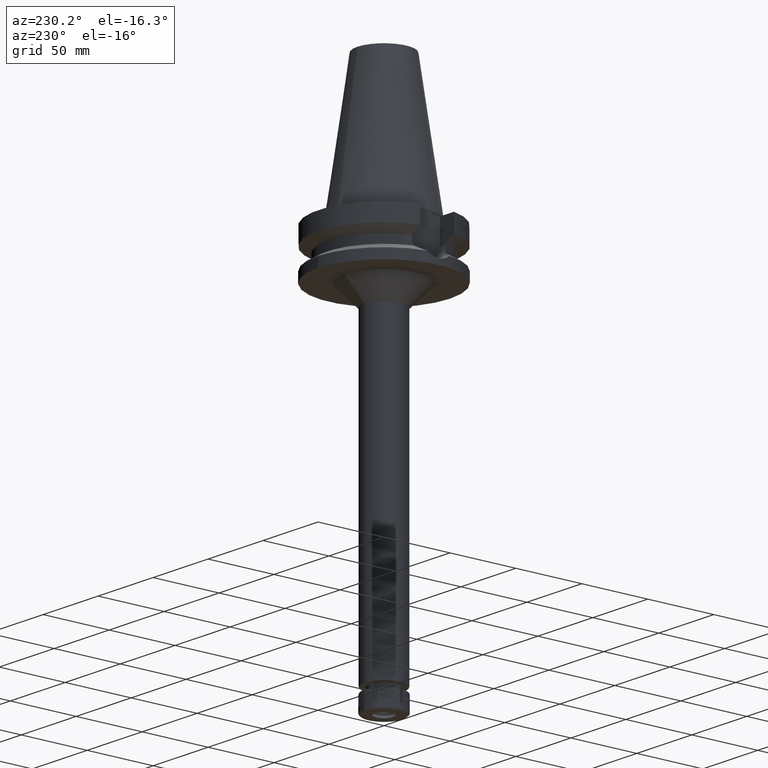
[diagram: clean part render]
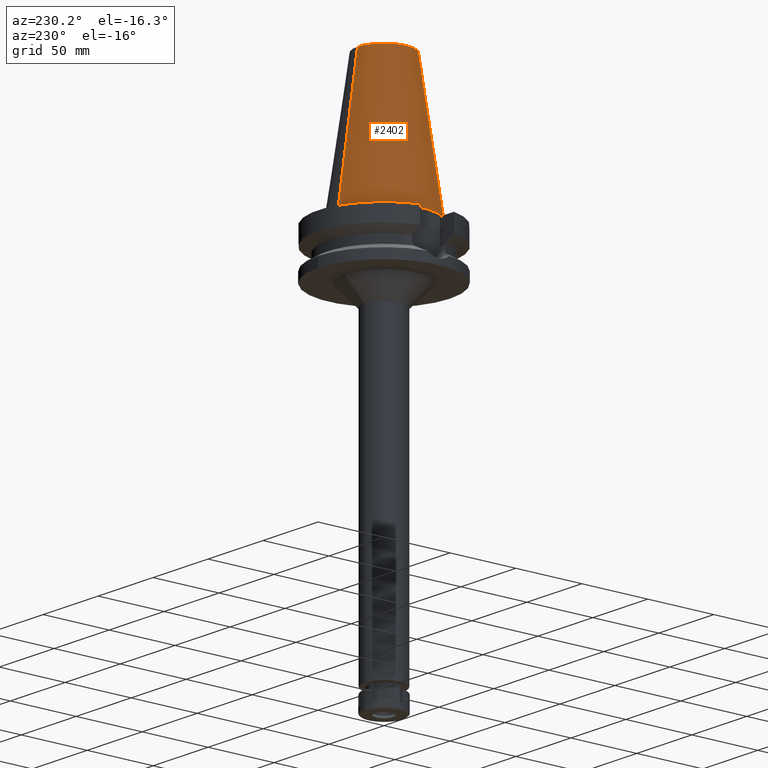
[diagram: same view with one face highlighted and labeled with its STEP entity id]
A machine part, auxiliary view. The second image highlights one B-rep face of the part: STEP entity #2402.
In plain terms, the highlighted conical surface has half-angle 8.297 deg.
Its self-contained STEP definition (entity closure, byte-faithful):
#28 = ORIENTED_EDGE ( 'NONE', *, *, #2291, .T. ) ;
#266 = CARTESIAN_POINT ( 'NONE',  ( 0.0000000000000000000, 20.07942971896000017, 101.7999999999999972 ) ) ;
#404 = VECTOR ( 'NONE', #3589, 1000.000000000000114 ) ;
#431 = CARTESIAN_POINT ( 'NONE',  ( 0.0000000000000000000, -34.92499999999999716, 8.526512829120999272E-13 ) ) ;
#478 = EDGE_CURVE ( 'NONE', #2591, #634, #2518, .T. ) ;
#517 = CARTESIAN_POINT ( 'NONE',  ( 0.0000000000000000000, 1.847992019912999597E-14, 50.89999999999999858 ) ) ;
#618 = EDGE_LOOP ( 'NONE', ( #3569, #734, #3232, #28 ) ) ;
#634 = VERTEX_POINT ( 'NONE', #3200 ) ;
#689 = VERTEX_POINT ( 'NONE', #1523 ) ;
#734 = ORIENTED_EDGE ( 'NONE', *, *, #3329, .F. ) ;
#786 = FACE_OUTER_BOUND ( 'NONE', #618, .T. ) ;
#969 = DIRECTION ( 'NONE',  ( 0.0000000000000000000, 0.0000000000000000000, -1.000000000000000000 ) ) ;
#1020 = DIRECTION ( 'NONE',  ( 0.0000000000000000000, 0.0000000000000000000, -1.000000000000000000 ) ) ;
#1077 = LINE ( 'NONE', #266, #404 ) ;
#1228 = AXIS2_PLACEMENT_3D ( 'NONE', #2950, #2125, #1281 ) ;
#1281 = DIRECTION ( 'NONE',  ( 0.0000000000000000000, -1.000000000000000000, 0.0000000000000000000 ) ) ;
#1382 = CONICAL_SURFACE ( 'NONE', #2431, 27.50221485948000222, 0.1448099680379422438 ) ;
#1523 = CARTESIAN_POINT ( 'NONE',  ( 0.0000000000000000000, 34.92499999999999716, 7.105427357600999839E-13 ) ) ;
#1632 = DIRECTION ( 'NONE',  ( 0.0000000000000000000, -1.000000000000000000, 0.0000000000000000000 ) ) ;
#1685 = CARTESIAN_POINT ( 'NONE',  ( 0.0000000000000000000, -20.07942971896000017, 101.7999999999999972 ) ) ;
#1782 = CARTESIAN_POINT ( 'NONE',  ( 0.0000000000000000000, 1.847992019912999597E-14, 101.7999999999999972 ) ) ;
#1806 = CIRCLE ( 'NONE', #1228, 34.92499999999999716 ) ;
#2125 = DIRECTION ( 'NONE',  ( 0.0000000000000000000, 0.0000000000000000000, -1.000000000000000000 ) ) ;
#2149 = VERTEX_POINT ( 'NONE', #431 ) ;
#2243 = CARTESIAN_POINT ( 'NONE',  ( 0.0000000000000000000, -20.07942971896000017, 101.7999999999999972 ) ) ;
#2291 = EDGE_CURVE ( 'NONE', #634, #689, #1077, .T. ) ;
#2300 = LINE ( 'NONE', #2243, #3253 ) ;
#2387 = DIRECTION ( 'NONE',  ( 0.0000000000000000000, -1.000000000000000000, 0.0000000000000000000 ) ) ;
#2402 = ADVANCED_FACE ( 'NONE', ( #786 ), #1382, .T. ) ;
#2431 = AXIS2_PLACEMENT_3D ( 'NONE', #517, #1020, #1632 ) ;
#2461 = AXIS2_PLACEMENT_3D ( 'NONE', #1782, #969, #2387 ) ;
#2518 = CIRCLE ( 'NONE', #2461, 20.07942971896000017 ) ;
#2591 = VERTEX_POINT ( 'NONE', #1685 ) ;
#2950 = CARTESIAN_POINT ( 'NONE',  ( 0.0000000000000000000, 1.847992019912999597E-14, 8.526512829120999272E-13 ) ) ;
#3135 = DIRECTION ( 'NONE',  ( 0.0000000000000000000, -0.1443043893538948075, -0.9895333461855641000 ) ) ;
#3200 = CARTESIAN_POINT ( 'NONE',  ( 0.0000000000000000000, 20.07942971896000017, 101.7999999999999972 ) ) ;
#3232 = ORIENTED_EDGE ( 'NONE', *, *, #478, .T. ) ;
#3253 = VECTOR ( 'NONE', #3135, 1000.000000000000114 ) ;
#3329 = EDGE_CURVE ( 'NONE', #2591, #2149, #2300, .T. ) ;
#3535 = EDGE_CURVE ( 'NONE', #2149, #689, #1806, .T. ) ;
#3569 = ORIENTED_EDGE ( 'NONE', *, *, #3535, .F. ) ;
#3589 = DIRECTION ( 'NONE',  ( 0.0000000000000000000, 0.1443043893538948075, -0.9895333461855641000 ) ) ;